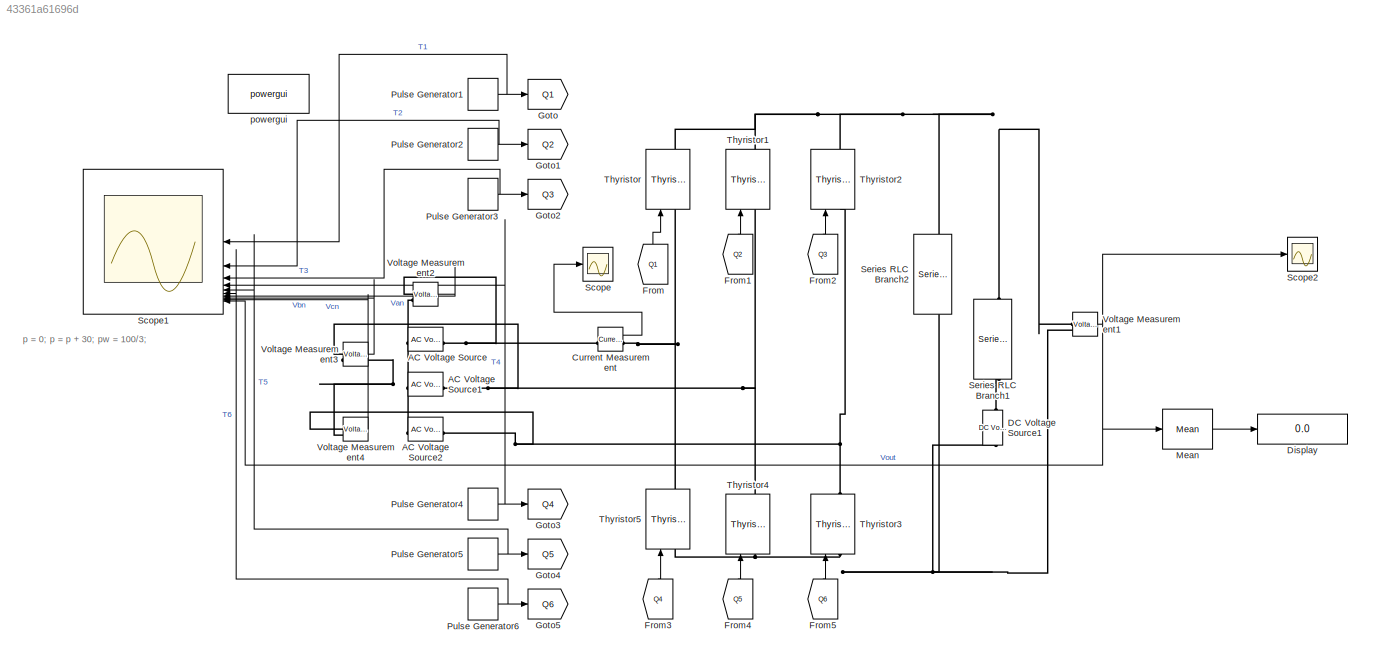
MODEL slx_43361a61696d
KIND model
CONFIG AbsTol = auto
CONFIG EnableMultiTasking = off
CONFIG FixedStep = auto
CONFIG MaxStep = auto
CONFIG MinStep = auto
CONFIG RelTol = 1e-3
CONFIG SampleTimeConstraint = Unconstrained
CONFIG SolverName = VariableStepAuto
CONFIG StartTime = 0.0
CONFIG StopTime = 2
BLOCK [Reference] AC Voltage Source  REF=spsACVoltageSourceLib/AC Voltage Source
  LibrarySourceBlock = sps_lib/Sources/AC Voltage Source
  NameLocation = left
  SourceBlock = spsACVoltageSourceLib/AC Voltage Source
  SourceType = AC Voltage Source
BLOCK [Reference] AC Voltage Source1  REF=spsACVoltageSourceLib/AC Voltage Source
  LibrarySourceBlock = sps_lib/Sources/AC Voltage Source
  NameLocation = top
  SourceBlock = spsACVoltageSourceLib/AC Voltage Source
  SourceType = AC Voltage Source
BLOCK [Reference] AC Voltage Source2  REF=spsACVoltageSourceLib/AC Voltage Source
  LibrarySourceBlock = sps_lib/Sources/AC Voltage Source
  NameLocation = left
  SourceBlock = spsACVoltageSourceLib/AC Voltage Source
  SourceType = AC Voltage Source
BLOCK [Reference] Current Measurement  REF=spsCurrentMeasurementLib/Current Measurement
  LibrarySourceBlock = sps_lib/Sensors and Measurements/Current Measurement
  SourceBlock = spsCurrentMeasurementLib/Current Measurement
  SourceType = Current Measurement
  UserDataPersistent = on
BLOCK [Reference] DC Voltage Source1  REF=spsDCVoltageSourceLib/DC Voltage Source
  LibrarySourceBlock = sps_lib/Sources/DC Voltage Source
  SourceBlock = spsDCVoltageSourceLib/DC Voltage Source
  SourceType = DC Voltage Source
BLOCK [Display] Display
  Decimation = 1
BLOCK [From] From
  GotoTag = Q1
  NameLocation = right
BLOCK [From] From1
  GotoTag = Q2
  NameLocation = right
BLOCK [From] From2
  GotoTag = Q3
  NameLocation = right
BLOCK [From] From3
  GotoTag = Q4
  NameLocation = right
BLOCK [From] From4
  GotoTag = Q5
  NameLocation = right
BLOCK [From] From5
  GotoTag = Q6
  NameLocation = right
BLOCK [Goto] Goto
  GotoTag = Q1
BLOCK [Goto] Goto1
  GotoTag = Q2
BLOCK [Goto] Goto2
  GotoTag = Q3
BLOCK [Goto] Goto3
  GotoTag = Q4
BLOCK [Goto] Goto4
  GotoTag = Q5
BLOCK [Goto] Goto5
  GotoTag = Q6
BLOCK [Reference] Mean  REF=spsMeanLib/Mean
  LibrarySourceBlock = sps_lib/Sensors and Measurements/Mean
  SourceBlock = spsMeanLib/Mean
  SourceType = Mean
BLOCK [DiscretePulseGenerator] Pulse Generator1
  Amplitude = 100
  Period = 1/50
  PhaseDelay = (p)*0.02/360
  PulseType = Time based
  PulseWidth = pw
BLOCK [DiscretePulseGenerator] Pulse Generator2
  Amplitude = 100
  Period = 1/50
  PhaseDelay = -0.02*(2/3)+(p)*0.02/360
  PulseType = Time based
  PulseWidth = pw
BLOCK [DiscretePulseGenerator] Pulse Generator3
  Amplitude = 100
  Period = 1/50
  PhaseDelay = -0.02*(1/3)+(p)*0.02/360
  PulseType = Time based
  PulseWidth = pw
BLOCK [DiscretePulseGenerator] Pulse Generator4
  Amplitude = 100
  Period = 1/50
  PhaseDelay = -0.02*(1/3+1/6)+(p)*0.02/360
  PulseType = Time based
  PulseWidth = pw
BLOCK [DiscretePulseGenerator] Pulse Generator5
  Amplitude = 100
  Period = 1/50
  PhaseDelay = -0.02*(1+1/6)+(p)*0.02/360
  PulseType = Time based
  PulseWidth = pw
BLOCK [DiscretePulseGenerator] Pulse Generator6
  Amplitude = 100
  Period = 1/50
  PhaseDelay = -0.02*(2/3+1/6)+(p)*0.02/360
  PulseType = Time based
  PulseWidth = pw
BLOCK [Scope] Scope
  Floating = off
  NumInputPorts = 1
  ScopeSpecificationString = Simulink.scopes.TimeScopeBlockCfg('CurrentConfiguration', extmgr.ConfigurationSet(extmgr.Configuration('Core','General UI',true),extmgr.Configuration('Core','Source UI',true),extmgr.Configuration('Sources','WiredSimulink',true),extmgr.Configuration('Visuals','Time Domain',true,'SerializedDisplays',{struct('MinYLimReal','-97.25043','MaxYLimReal','870.1472','YLabelReal','','MinYLimMag','0.00000','Ma...<+1519ch>
BLOCK [Scope] Scope1
  Floating = off
  NameLocation = top
  NumInputPorts = 10
  ScopeSpecificationString = Simulink.scopes.TimeScopeBlockCfg('CurrentConfiguration', extmgr.ConfigurationSet(extmgr.Configuration('Core','General UI',true),extmgr.Configuration('Core','Source UI',true),extmgr.Configuration('Sources','WiredSimulink',true,'DataLoggingVariableName','ScopeData1'),extmgr.Configuration('Visuals','Time Domain',true,'SerializedDisplays',{struct('MinYLimReal','-436.15017','MaxYLimReal','672.66032','...<+1813ch>
BLOCK [Scope] Scope2
  Floating = off
  NumInputPorts = 1
  ScopeSpecificationString = Simulink.scopes.TimeScopeBlockCfg('CurrentConfiguration', extmgr.ConfigurationSet(extmgr.Configuration('Core','General UI',true),extmgr.Configuration('Core','Source UI',true),extmgr.Configuration('Sources','WiredSimulink',true,'DataLoggingVariableName','ScopeData2'),extmgr.Configuration('Visuals','Time Domain',true,'SerializedDisplays',{struct('MinYLimReal','-70.22241','MaxYLimReal','632.00168','Y...<+1492ch>
BLOCK [Reference] Series RLC Branch1  REF=spsSeriesRLCBranchLib/Series RLC Branch
  LibrarySourceBlock = sps_lib/Passives/Series RLC Branch
  NameLocation = left
  SourceBlock = spsSeriesRLCBranchLib/Series RLC Branch
  SourceType = Series RLC Branch
BLOCK [Reference] Series RLC Branch2  REF=spsSeriesRLCBranchLib/Series RLC Branch
  LibrarySourceBlock = sps_lib/Passives/Series RLC Branch
  NameLocation = left
  SourceBlock = spsSeriesRLCBranchLib/Series RLC Branch
  SourceType = Series RLC Branch
BLOCK [Reference] Thyristor  REF=spsThyristorLib/Thyristor
  LibrarySourceBlock = sps_lib/Power Electronics/Thyristor
  NameLocation = right
  SourceBlock = spsThyristorLib/Thyristor
  SourceType = Thyristor
BLOCK [Reference] Thyristor1  REF=spsThyristorLib/Thyristor
  LibrarySourceBlock = sps_lib/Power Electronics/Thyristor
  NameLocation = right
  SourceBlock = spsThyristorLib/Thyristor
  SourceType = Thyristor
BLOCK [Reference] Thyristor2  REF=spsThyristorLib/Thyristor
  LibrarySourceBlock = sps_lib/Power Electronics/Thyristor
  NameLocation = right
  SourceBlock = spsThyristorLib/Thyristor
  SourceType = Thyristor
BLOCK [Reference] Thyristor3  REF=spsThyristorLib/Thyristor
  LibrarySourceBlock = sps_lib/Power Electronics/Thyristor
  NameLocation = right
  SourceBlock = spsThyristorLib/Thyristor
  SourceType = Thyristor
BLOCK [Reference] Thyristor4  REF=spsThyristorLib/Thyristor
  LibrarySourceBlock = sps_lib/Power Electronics/Thyristor
  NameLocation = right
  SourceBlock = spsThyristorLib/Thyristor
  SourceType = Thyristor
BLOCK [Reference] Thyristor5  REF=spsThyristorLib/Thyristor
  LibrarySourceBlock = sps_lib/Power Electronics/Thyristor
  NameLocation = right
  SourceBlock = spsThyristorLib/Thyristor
  SourceType = Thyristor
BLOCK [Reference] Voltage Measurement1  REF=spsVoltageMeasurementLib/Voltage Measurement
  LibrarySourceBlock = sps_lib/Sensors and Measurements/Voltage Measurement
  SourceBlock = spsVoltageMeasurementLib/Voltage Measurement
  SourceType = Voltage Measurement
  UserDataPersistent = on
BLOCK [Reference] Voltage Measurement2  REF=spsVoltageMeasurementLib/Voltage Measurement
  LibrarySourceBlock = sps_lib/Sensors and Measurements/Voltage Measurement
  SourceBlock = spsVoltageMeasurementLib/Voltage Measurement
  SourceType = Voltage Measurement
  UserDataPersistent = on
BLOCK [Reference] Voltage Measurement3  REF=spsVoltageMeasurementLib/Voltage Measurement
  LibrarySourceBlock = sps_lib/Sensors and Measurements/Voltage Measurement
  SourceBlock = spsVoltageMeasurementLib/Voltage Measurement
  SourceType = Voltage Measurement
  UserDataPersistent = on
BLOCK [Reference] Voltage Measurement4  REF=spsVoltageMeasurementLib/Voltage Measurement
  LibrarySourceBlock = sps_lib/Sensors and Measurements/Voltage Measurement
  SourceBlock = spsVoltageMeasurementLib/Voltage Measurement
  SourceType = Voltage Measurement
  UserDataPersistent = on
BLOCK [Reference] powergui  REF=sps_lib/powergui
  Priority = 1
  SourceBlock = sps_lib/powergui
  SourceType = PSB option menu block
ANNOTATION (root): p = 0; p = p + 30; pw = 100/3;
LINE Current Measurement:1 -> Scope:1
LINE From1:1 -> Thyristor1:1
LINE From2:1 -> Thyristor2:1
LINE From3:1 -> Thyristor5:1
LINE From4:1 -> Thyristor4:1
LINE From5:1 -> Thyristor3:1
LINE From:1 -> Thyristor:1
LINE Mean:1 -> Display:1
NET Pulse Generator1:1 -> Goto:1, Scope1:1
NET Pulse Generator2:1 -> Goto1:1, Scope1:2
NET Pulse Generator3:1 -> Goto2:1, Scope1:3
NET Pulse Generator4:1 -> Goto3:1, Scope1:4
NET Pulse Generator5:1 -> Goto4:1, Scope1:5
NET Pulse Generator6:1 -> Goto5:1, Scope1:6
NET Voltage Measurement1:1 -> Mean:1, Scope1:10, Scope2:1
LINE Voltage Measurement2:1 -> Scope1:7
LINE Voltage Measurement3:1 -> Scope1:8
LINE Voltage Measurement4:1 -> Scope1:9
PNET net1: AC Voltage Source1:LConn1 -- AC Voltage Source2:LConn1 -- AC Voltage Source:LConn1 -- Voltage Measurement2:LConn2 -- Voltage Measurement3:LConn2 -- Voltage Measurement4:LConn2
PNET net2: AC Voltage Source1:RConn1 -- Thyristor1:LConn1 -- Thyristor4:RConn1 -- Voltage Measurement3:LConn1
PNET net3: AC Voltage Source2:RConn1 -- Thyristor2:LConn1 -- Thyristor3:RConn1 -- Voltage Measurement4:LConn1
PNET net4: AC Voltage Source:RConn1 -- Current Measurement:LConn1 -- Voltage Measurement2:LConn1
PNET net5: Current Measurement:RConn1 -- Thyristor5:RConn1 -- Thyristor:LConn1
PNET net6: DC Voltage Source1:LConn1 -- Series RLC Branch2:RConn1 -- Thyristor3:LConn1 -- Thyristor4:LConn1 -- Thyristor5:LConn1 -- Voltage Measurement1:LConn2
PLINE DC Voltage Source1:RConn1 -- Series RLC Branch1:RConn1
PNET net7: Series RLC Branch1:LConn1 -- Series RLC Branch2:LConn1 -- Thyristor1:RConn1 -- Thyristor2:RConn1 -- Thyristor:RConn1 -- Voltage Measurement1:LConn1
note: NET lines group one-source signal fan-out (src -> all destinations, sorted); 1:1 wires keep LINE; PNET lines group multi-terminal physical nets as a canonical sorted terminal list (undirected conserving connections); 2-terminal nets keep the pairwise PLINE form
